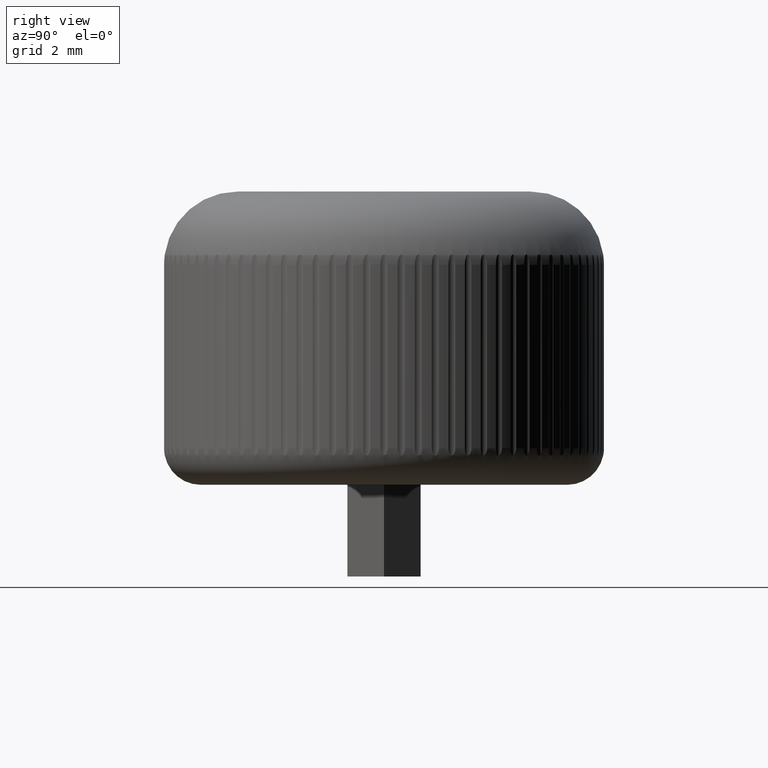
[diagram: clean part render]
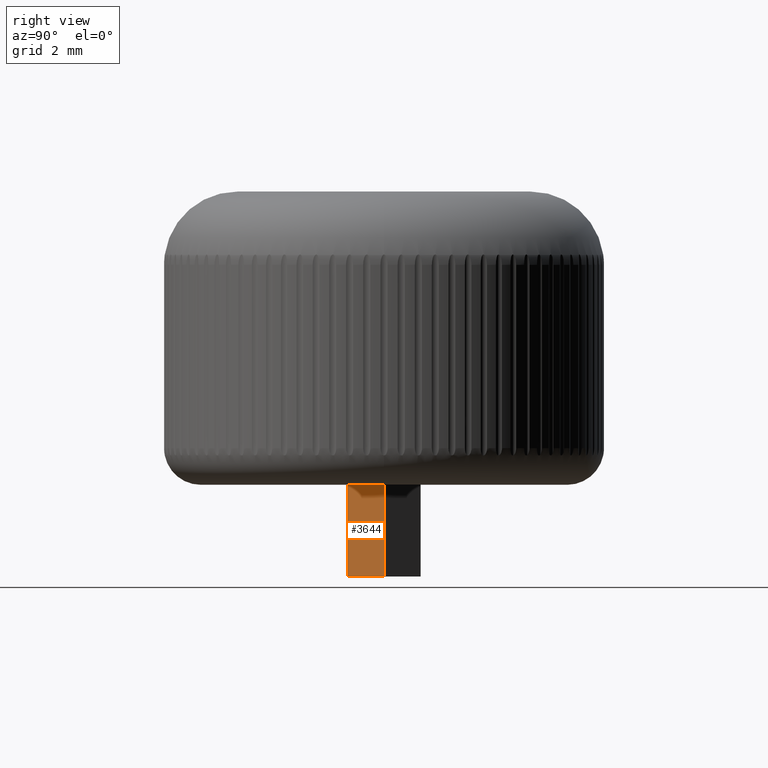
[diagram: same view with one face highlighted and labeled with its STEP entity id]
A machine part, right view. The second image highlights one B-rep face of the part: STEP entity #3644.
In plain terms, the highlighted planar face has unit normal (-0.866, 0.5, 0).
Its self-contained STEP definition (entity closure, byte-faithful):
#319 = ORIENTED_EDGE ( 'NONE', *, *, #5680, .F. ) ;
#558 = ORIENTED_EDGE ( 'NONE', *, *, #4268, .F. ) ;
#613 = CARTESIAN_POINT ( 'NONE',  ( 0.5773502691896242900, -1.000000000000000700, 0.0000000000000000000 ) ) ;
#651 = FACE_OUTER_BOUND ( 'NONE', #4659, .T. ) ;
#1019 = LINE ( 'NONE', #3866, #6780 ) ;
#1603 = DIRECTION ( 'NONE',  ( -0.5000000000000004400, -0.8660254037844383700, 0.0000000000000000000 ) ) ;
#1825 = CARTESIAN_POINT ( 'NONE',  ( 0.5773502691896242900, -1.000000000000000700, -2.500000000000000000 ) ) ;
#2638 = DIRECTION ( 'NONE',  ( -0.0000000000000000000, -0.0000000000000000000, 1.000000000000000000 ) ) ;
#2780 = VERTEX_POINT ( 'NONE', #4220 ) ;
#2918 = VECTOR ( 'NONE', #1603, 1000.000000000000100 ) ;
#3119 = ORIENTED_EDGE ( 'NONE', *, *, #3741, .T. ) ;
#3601 = VERTEX_POINT ( 'NONE', #7014 ) ;
#3644 = ADVANCED_FACE ( 'NONE', ( #651 ), #6529, .F. ) ;
#3741 = EDGE_CURVE ( 'NONE', #2780, #7334, #5468, .T. ) ;
#3772 = CARTESIAN_POINT ( 'NONE',  ( 0.5773502691896242900, -1.000000000000000700, -2.500000000000000000 ) ) ;
#3866 = CARTESIAN_POINT ( 'NONE',  ( 1.154700538379250800, -6.716012339536171100E-016, -2.500000000000000000 ) ) ;
#4165 = VERTEX_POINT ( 'NONE', #1825 ) ;
#4220 = CARTESIAN_POINT ( 'NONE',  ( 1.154700538379251200, -5.421010862427522200E-016, 0.0000000000000000000 ) ) ;
#4268 = EDGE_CURVE ( 'NONE', #4165, #7334, #4869, .T. ) ;
#4486 = DIRECTION ( 'NONE',  ( -0.0000000000000000000, -0.0000000000000000000, 1.000000000000000000 ) ) ;
#4491 = DIRECTION ( 'NONE',  ( -0.5000000000000004400, -0.8660254037844383700, 0.0000000000000000000 ) ) ;
#4547 = AXIS2_PLACEMENT_3D ( 'NONE', #6914, #5663, #4491 ) ;
#4659 = EDGE_LOOP ( 'NONE', ( #3119, #558, #319, #7104 ) ) ;
#4662 = LINE ( 'NONE', #5279, #2918 ) ;
#4869 = LINE ( 'NONE', #3772, #7082 ) ;
#5279 = CARTESIAN_POINT ( 'NONE',  ( 1.154700538379250800, -6.716012339536171100E-016, -2.500000000000000000 ) ) ;
#5468 = LINE ( 'NONE', #5507, #5940 ) ;
#5507 = CARTESIAN_POINT ( 'NONE',  ( 1.154700538379250800, -6.716012339536171100E-016, -0.0000000000000000000 ) ) ;
#5663 = DIRECTION ( 'NONE',  ( -0.8660254037844383700, 0.5000000000000004400, 0.0000000000000000000 ) ) ;
#5680 = EDGE_CURVE ( 'NONE', #3601, #4165, #4662, .T. ) ;
#5871 = EDGE_CURVE ( 'NONE', #3601, #2780, #1019, .T. ) ;
#5940 = VECTOR ( 'NONE', #6677, 1000.000000000000100 ) ;
#6529 = PLANE ( 'NONE',  #4547 ) ;
#6677 = DIRECTION ( 'NONE',  ( -0.5000000000000004400, -0.8660254037844383700, 0.0000000000000000000 ) ) ;
#6780 = VECTOR ( 'NONE', #4486, 1000.000000000000000 ) ;
#6914 = CARTESIAN_POINT ( 'NONE',  ( 1.154700538379250800, -6.716012339536171100E-016, -2.500000000000000000 ) ) ;
#7014 = CARTESIAN_POINT ( 'NONE',  ( 1.154700538379250800, -6.716012339536171100E-016, -2.500000000000000000 ) ) ;
#7082 = VECTOR ( 'NONE', #2638, 1000.000000000000000 ) ;
#7104 = ORIENTED_EDGE ( 'NONE', *, *, #5871, .T. ) ;
#7334 = VERTEX_POINT ( 'NONE', #613 ) ;